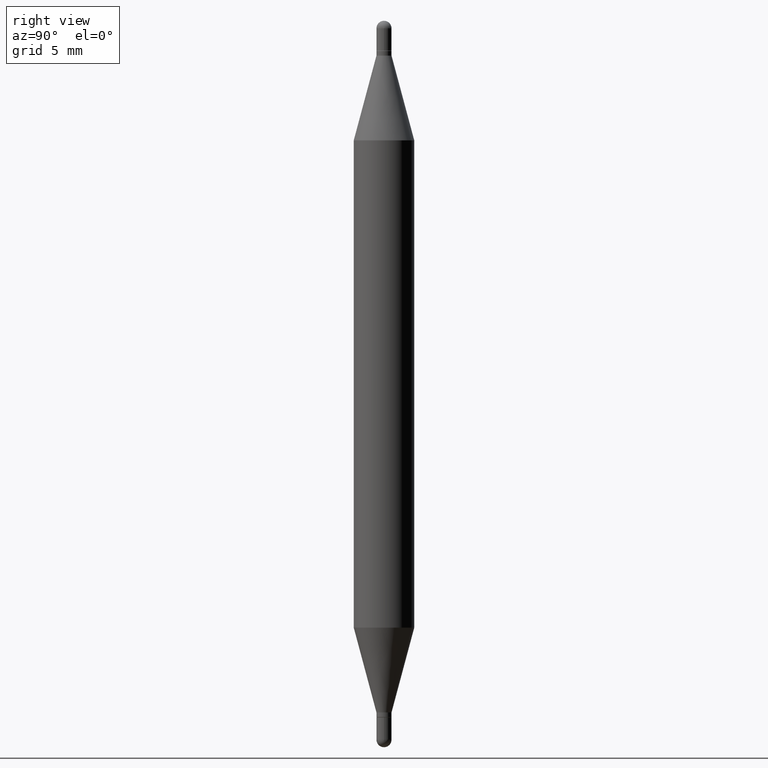
[diagram: clean part render]
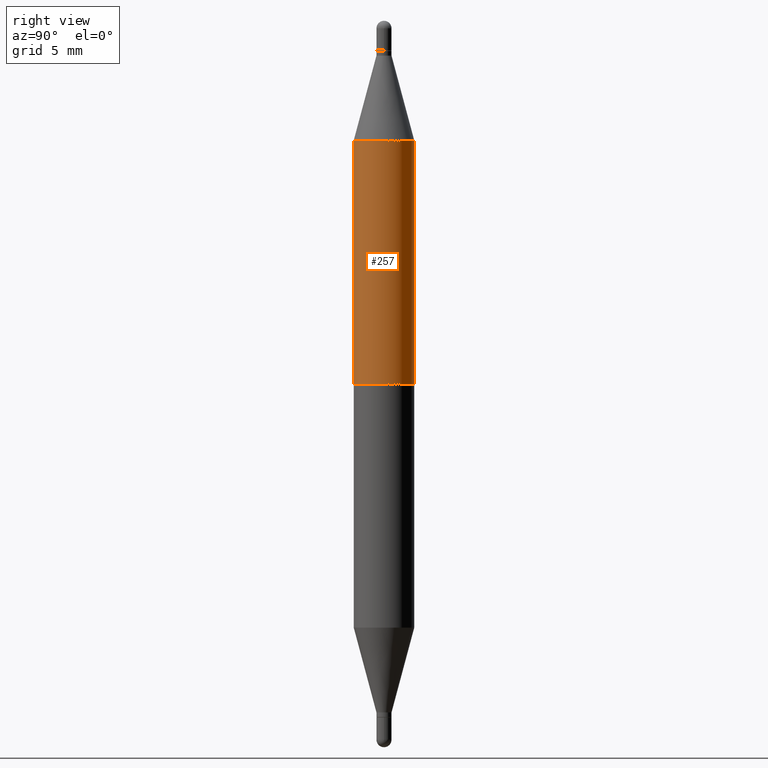
[diagram: same view with one face highlighted and labeled with its STEP entity id]
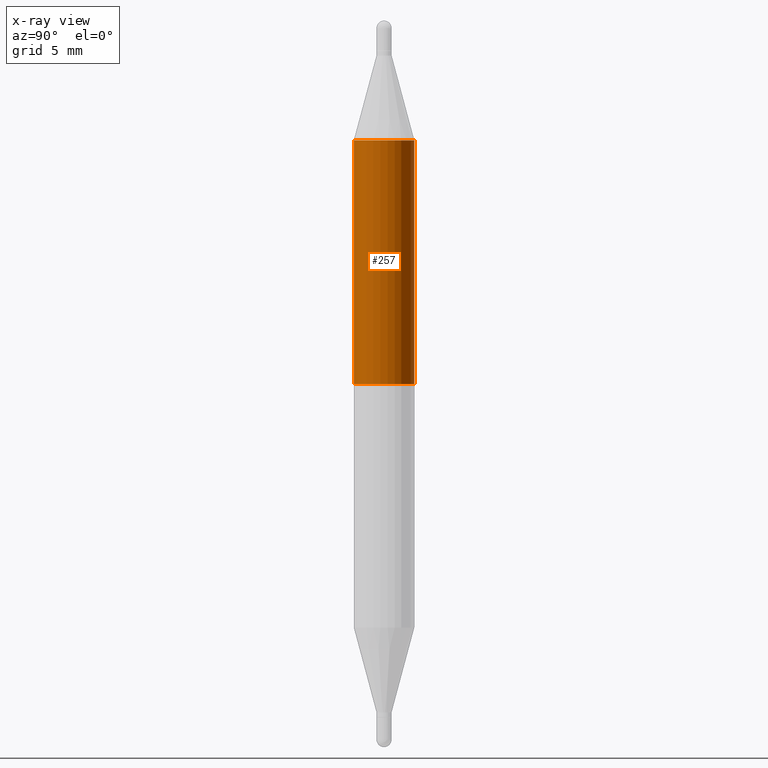
[diagram: x-ray of the same camera — body ghosted, the highlighted face saturated]
A machine part, right view. The second image highlights one B-rep face of the part: STEP entity #257.
The next image is the same camera in x-ray: the body ghosted, the highlighted face saturated — about 0% of this face is hidden behind the body in this view.
In plain terms, the highlighted cylindrical surface (edge-blend (fillet) strip) has radius 1.5875 mm, axis along (-0, -0, -1).
Its self-contained STEP definition (entity closure, byte-faithful):
#18 = DIRECTION ( 'NONE',  ( -6.982962677686265922E-15, -1.000000000000000000, 3.278217592397116257E-15 ) ) ;
#22 = CARTESIAN_POINT ( 'NONE',  ( 4.287811248607452266E-16, 0.06249999999999738404, -0.7500000000000004441 ) ) ;
#40 = CARTESIAN_POINT ( 'NONE',  ( 0.000000000000000000, -5.228321854365732350E-15, -1.500000000000000444 ) ) ;
#54 = DIRECTION ( 'NONE',  ( -2.448365453507603651E-29, -3.483762630810528106E-15, -1.000000000000000000 ) ) ;
#85 = AXIS2_PLACEMENT_3D ( 'NONE', #40, #1071, #571 ) ;
#120 = ORIENTED_EDGE ( 'NONE', *, *, #614, .F. ) ;
#123 = LINE ( 'NONE', #403, #710 ) ;
#181 = AXIS2_PLACEMENT_3D ( 'NONE', #1045, #537, #18 ) ;
#207 = VERTEX_POINT ( 'NONE', #22 ) ;
#214 = ORIENTED_EDGE ( 'NONE', *, *, #936, .F. ) ;
#217 = CYLINDRICAL_SURFACE ( 'NONE', #85, 0.06250000000000000000 ) ;
#254 = DIRECTION ( 'NONE',  ( -2.448365453507603651E-29, -3.483762630810528106E-15, -1.000000000000000000 ) ) ;
#257 = ADVANCED_FACE ( 'NONE', ( #984 ), #217, .T. ) ;
#403 = CARTESIAN_POINT ( 'NONE',  ( -4.364351673553916201E-16, -0.06250000000000521805, -1.500000000000000222 ) ) ;
#433 = VERTEX_POINT ( 'NONE', #1054 ) ;
#505 = DIRECTION ( 'NONE',  ( 0.000000000000000000, 1.000000000000000000, -4.370956789862821150E-15 ) ) ;
#523 = ORIENTED_EDGE ( 'NONE', *, *, #705, .F. ) ;
#537 = DIRECTION ( 'NONE',  ( 2.448365453507603651E-29, 3.483762630810528106E-15, 1.000000000000000000 ) ) ;
#571 = DIRECTION ( 'NONE',  ( -6.982962677686265922E-15, -1.000000000000000000, 4.370956789862821150E-15 ) ) ;
#586 = CIRCLE ( 'NONE', #181, 0.06249999999999999306 ) ;
#609 = CARTESIAN_POINT ( 'NONE',  ( 4.287811248607512910E-16, 0.06249999999999911876, -0.2470331828749807723 ) ) ;
#614 = EDGE_CURVE ( 'NONE', #1096, #207, #744, .T. ) ;
#705 = EDGE_CURVE ( 'NONE', #904, #1096, #586, .T. ) ;
#710 = VECTOR ( 'NONE', #54, 39.37007874015748143 ) ;
#730 = AXIS2_PLACEMENT_3D ( 'NONE', #839, #1097, #505 ) ;
#744 = LINE ( 'NONE', #1016, #932 ) ;
#818 = EDGE_CURVE ( 'NONE', #904, #433, #123, .T. ) ;
#839 = CARTESIAN_POINT ( 'NONE',  ( 1.836274090130703229E-29, -2.615499881257834791E-15, -0.7500000000000002220 ) ) ;
#854 = ORIENTED_EDGE ( 'NONE', *, *, #818, .T. ) ;
#893 = EDGE_LOOP ( 'NONE', ( #120, #523, #854, #214 ) ) ;
#904 = VERTEX_POINT ( 'NONE', #954 ) ;
#932 = VECTOR ( 'NONE', #254, 39.37007874015748143 ) ;
#936 = EDGE_CURVE ( 'NONE', #207, #433, #1065, .T. ) ;
#954 = CARTESIAN_POINT ( 'NONE',  ( -4.364351673553608545E-16, -0.06250000000000086042, -0.2470331828749803005 ) ) ;
#984 = FACE_OUTER_BOUND ( 'NONE', #893, .T. ) ;
#1016 = CARTESIAN_POINT ( 'NONE',  ( 4.287811248607206733E-16, 0.06249999999999477501, -1.500000000000000666 ) ) ;
#1045 = CARTESIAN_POINT ( 'NONE',  ( 3.067720669440277841E-29, -8.632828792199796341E-16, -0.2470331828749805503 ) ) ;
#1054 = CARTESIAN_POINT ( 'NONE',  ( -4.364351673553731805E-16, -0.06250000000000260902, -0.7499999999999998890 ) ) ;
#1065 = CIRCLE ( 'NONE', #730, 0.06250000000000000000 ) ;
#1071 = DIRECTION ( 'NONE',  ( -2.448365453507603651E-29, -3.483762630810528106E-15, -1.000000000000000000 ) ) ;
#1096 = VERTEX_POINT ( 'NONE', #609 ) ;
#1097 = DIRECTION ( 'NONE',  ( -0.000000000000000000, -3.485547902910486918E-15, -1.000000000000000000 ) ) ;